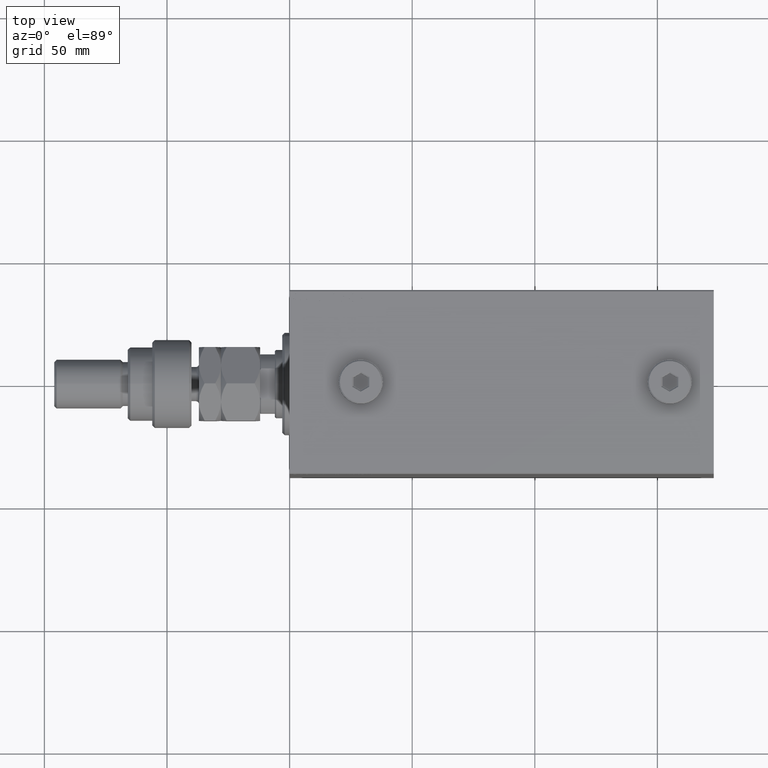
[diagram: clean part render]
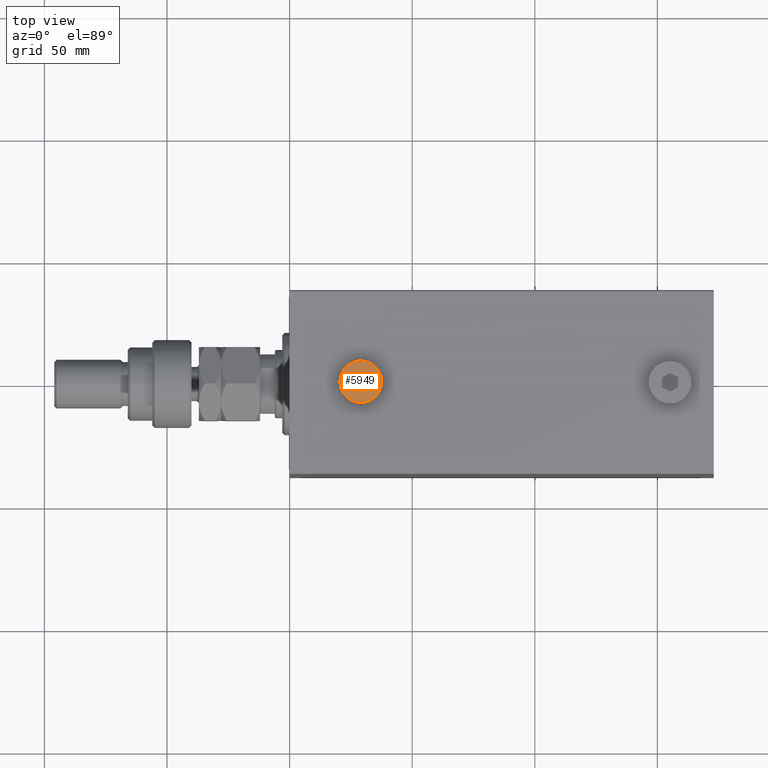
[diagram: same view with one face highlighted and labeled with its STEP entity id]
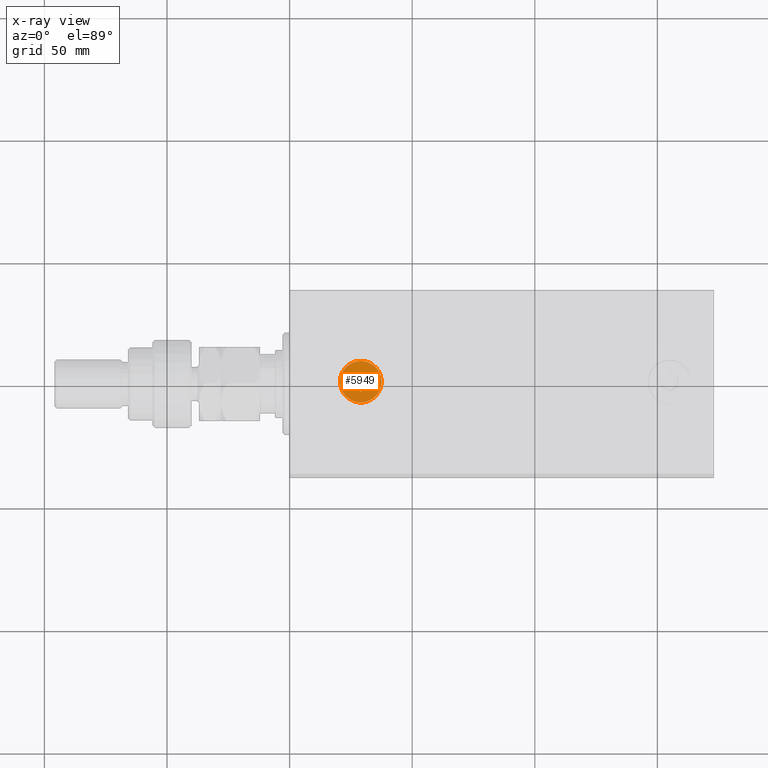
[diagram: x-ray of the same camera — body ghosted, the highlighted face saturated]
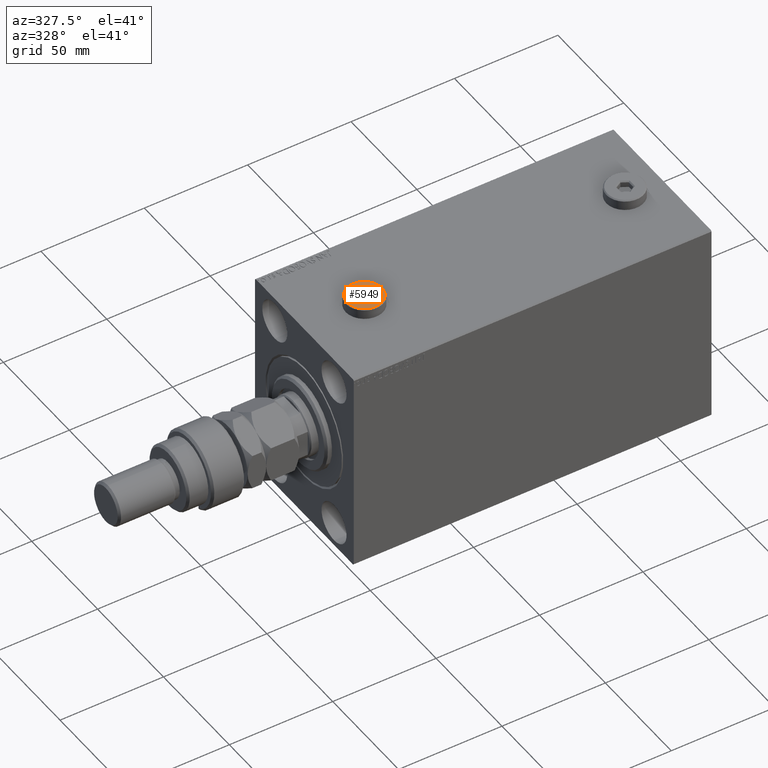
[diagram: same view with one face highlighted and labeled with its STEP entity id]
A machine part, top view. The second image highlights one B-rep face of the part: STEP entity #5949.
The next image is the same camera in x-ray: the body ghosted, the highlighted face saturated — about 0% of this face is hidden behind the body in this view.
A second angle (auxiliary view) of the same face is appended — the face is thin or edge-on in the first view.
In plain terms, the highlighted planar face has unit normal (0, 0, 1).
Its self-contained STEP definition (entity closure, byte-faithful):
#415 = CARTESIAN_POINT ( 'NONE',  ( -0.2500000000000027756, 3.897114317029978459, 5.000000000000000000 ) ) ;
#769 = DIRECTION ( 'NONE',  ( 1.000000000000000000, 0.000000000000000000, -0.000000000000000000 ) ) ;
#826 = LINE ( 'NONE', #38560, #42006 ) ;
#1012 = PLANE ( 'NONE',  #8860 ) ;
#3595 = DIRECTION ( 'NONE',  ( 0.8660254037844387076, 0.4999999999999998335, 0.000000000000000000 ) ) ;
#3765 = ORIENTED_EDGE ( 'NONE', *, *, #38425, .T. ) ;
#5067 = VERTEX_POINT ( 'NONE', #41658 ) ;
#5242 = CIRCLE ( 'NONE', #27024, 8.500000000000010658 ) ;
#5949 = ADVANCED_FACE ( 'NONE', ( #45575, #37775 ), #1012, .T. ) ;
#6635 = VERTEX_POINT ( 'NONE', #25224 ) ;
#7677 = ORIENTED_EDGE ( 'NONE', *, *, #41589, .T. ) ;
#7844 = DIRECTION ( 'NONE',  ( 0.000000000000000000, 0.000000000000000000, 1.000000000000000000 ) ) ;
#8400 = VECTOR ( 'NONE', #29014, 1000.000000000000000 ) ;
#8860 = AXIS2_PLACEMENT_3D ( 'NONE', #42156, #7844, #769 ) ;
#11058 = LINE ( 'NONE', #14258, #39568 ) ;
#12743 = EDGE_CURVE ( 'NONE', #30538, #6635, #33768, .T. ) ;
#14258 = CARTESIAN_POINT ( 'NONE',  ( -3.500000000000006661, 1.732050807568878081, 5.000000000000000000 ) ) ;
#14826 = CIRCLE ( 'NONE', #29589, 8.500000000000010658 ) ;
#15056 = CARTESIAN_POINT ( 'NONE',  ( -8.500000000000010658, 0.000000000000000000, 5.000000000000000000 ) ) ;
#15358 = EDGE_LOOP ( 'NONE', ( #22783, #32015 ) ) ;
#15863 = VERTEX_POINT ( 'NONE', #31265 ) ;
#17530 = CARTESIAN_POINT ( 'NONE',  ( 3.500000000000006661, -2.020725942163693833, 5.000000000000000000 ) ) ;
#17557 = CARTESIAN_POINT ( 'NONE',  ( 0.000000000000000000, 0.000000000000000000, 5.000000000000000000 ) ) ;
#17711 = VERTEX_POINT ( 'NONE', #15056 ) ;
#21951 = LINE ( 'NONE', #47999, #8400 ) ;
#22084 = ORIENTED_EDGE ( 'NONE', *, *, #44808, .T. ) ;
#22572 = CARTESIAN_POINT ( 'NONE',  ( 8.500000000000010658, 1.071565949253934716E-15, 5.000000000000000000 ) ) ;
#22783 = ORIENTED_EDGE ( 'NONE', *, *, #30615, .T. ) ;
#23067 = DIRECTION ( 'NONE',  ( 1.000000000000000000, 0.000000000000000000, 0.000000000000000000 ) ) ;
#24329 = VERTEX_POINT ( 'NONE', #17530 ) ;
#25224 = CARTESIAN_POINT ( 'NONE',  ( 1.590596867181068292E-15, 4.041451884327386779, 5.000000000000000000 ) ) ;
#25454 = ORIENTED_EDGE ( 'NONE', *, *, #12743, .T. ) ;
#25562 = CARTESIAN_POINT ( 'NONE',  ( -3.500000000000006661, 2.020725942163692945, 5.000000000000000000 ) ) ;
#25798 = ORIENTED_EDGE ( 'NONE', *, *, #37153, .T. ) ;
#26686 = ORIENTED_EDGE ( 'NONE', *, *, #32041, .T. ) ;
#27024 = AXIS2_PLACEMENT_3D ( 'NONE', #17557, #32385, #47239 ) ;
#27218 = EDGE_CURVE ( 'NONE', #40455, #17711, #14826, .T. ) ;
#28103 = VECTOR ( 'NONE', #42541, 1000.000000000000000 ) ;
#29014 = DIRECTION ( 'NONE',  ( -0.8660254037844387076, -0.4999999999999998890, 0.000000000000000000 ) ) ;
#29427 = CARTESIAN_POINT ( 'NONE',  ( 3.500000000000006661, 2.020725942163694722, 5.000000000000000000 ) ) ;
#29589 = AXIS2_PLACEMENT_3D ( 'NONE', #41319, #34257, #23067 ) ;
#30538 = VERTEX_POINT ( 'NONE', #25562 ) ;
#30615 = EDGE_CURVE ( 'NONE', #17711, #40455, #5242, .T. ) ;
#31265 = CARTESIAN_POINT ( 'NONE',  ( -3.500000000000006661, -2.020725942163694278, 5.000000000000000000 ) ) ;
#31383 = EDGE_LOOP ( 'NONE', ( #3765, #25454, #22084, #7677, #26686, #25798 ) ) ;
#31471 = CARTESIAN_POINT ( 'NONE',  ( -3.250000000000003109, -2.165063509461102598, 5.000000000000000000 ) ) ;
#32015 = ORIENTED_EDGE ( 'NONE', *, *, #27218, .T. ) ;
#32041 = EDGE_CURVE ( 'NONE', #24329, #5067, #21951, .T. ) ;
#32385 = DIRECTION ( 'NONE',  ( 0.000000000000000000, 0.000000000000000000, 1.000000000000000000 ) ) ;
#33768 = LINE ( 'NONE', #415, #37663 ) ;
#34257 = DIRECTION ( 'NONE',  ( 0.000000000000000000, 0.000000000000000000, 1.000000000000000000 ) ) ;
#37153 = EDGE_CURVE ( 'NONE', #5067, #15863, #45191, .T. ) ;
#37663 = VECTOR ( 'NONE', #3595, 1000.000000000000000 ) ;
#37775 = FACE_OUTER_BOUND ( 'NONE', #15358, .T. ) ;
#38425 = EDGE_CURVE ( 'NONE', #15863, #30538, #11058, .T. ) ;
#38560 = CARTESIAN_POINT ( 'NONE',  ( 3.500000000000006661, -1.732050807568878303, 5.000000000000000000 ) ) ;
#39568 = VECTOR ( 'NONE', #44429, 1000.000000000000000 ) ;
#40455 = VERTEX_POINT ( 'NONE', #22572 ) ;
#41319 = CARTESIAN_POINT ( 'NONE',  ( 0.000000000000000000, 0.000000000000000000, 5.000000000000000000 ) ) ;
#41589 = EDGE_CURVE ( 'NONE', #47028, #24329, #826, .T. ) ;
#41658 = CARTESIAN_POINT ( 'NONE',  ( -1.006139216460143630E-15, -4.041451884327387667, 5.000000000000000000 ) ) ;
#42006 = VECTOR ( 'NONE', #46355, 1000.000000000000000 ) ;
#42156 = CARTESIAN_POINT ( 'NONE',  ( 0.000000000000000000, 0.000000000000000000, 5.000000000000000000 ) ) ;
#42541 = DIRECTION ( 'NONE',  ( 0.8660254037844387076, -0.4999999999999998890, 0.000000000000000000 ) ) ;
#44310 = VECTOR ( 'NONE', #46334, 1000.000000000000114 ) ;
#44429 = DIRECTION ( 'NONE',  ( 0.000000000000000000, 1.000000000000000000, 0.000000000000000000 ) ) ;
#44808 = EDGE_CURVE ( 'NONE', #6635, #47028, #45712, .T. ) ;
#45191 = LINE ( 'NONE', #31471, #44310 ) ;
#45575 = FACE_BOUND ( 'NONE', #31383, .T. ) ;
#45712 = LINE ( 'NONE', #46206, #28103 ) ;
#46206 = CARTESIAN_POINT ( 'NONE',  ( 3.250000000000003109, 2.165063509461103042, 5.000000000000000000 ) ) ;
#46334 = DIRECTION ( 'NONE',  ( -0.8660254037844385966, 0.4999999999999999445, 0.000000000000000000 ) ) ;
#46355 = DIRECTION ( 'NONE',  ( 0.000000000000000000, -1.000000000000000000, 0.000000000000000000 ) ) ;
#47028 = VERTEX_POINT ( 'NONE', #29427 ) ;
#47239 = DIRECTION ( 'NONE',  ( 1.000000000000000000, 0.000000000000000000, 0.000000000000000000 ) ) ;
#47999 = CARTESIAN_POINT ( 'NONE',  ( 0.2500000000000027756, -3.897114317029979347, 5.000000000000000000 ) ) ;